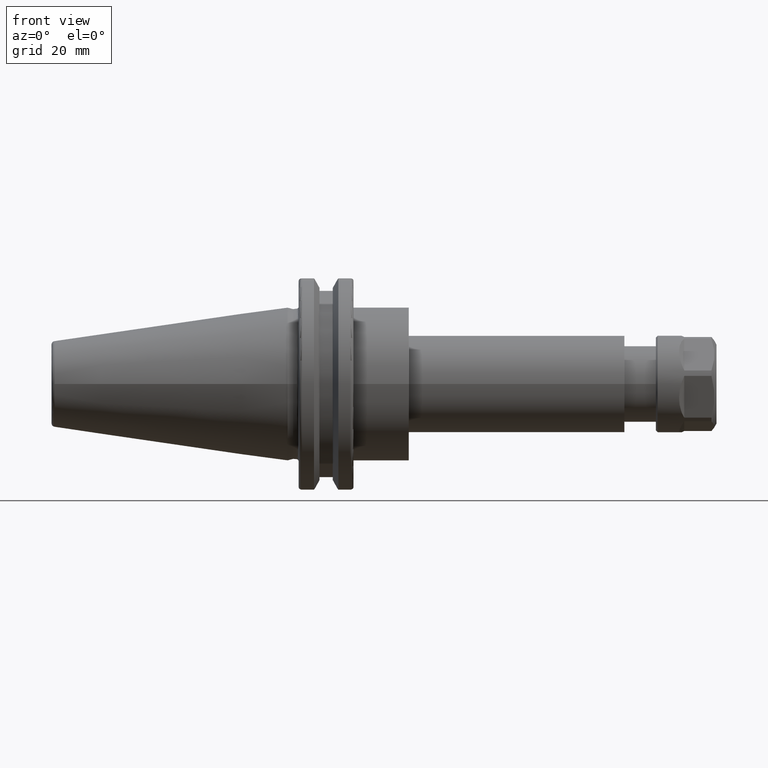
[diagram: clean part render]
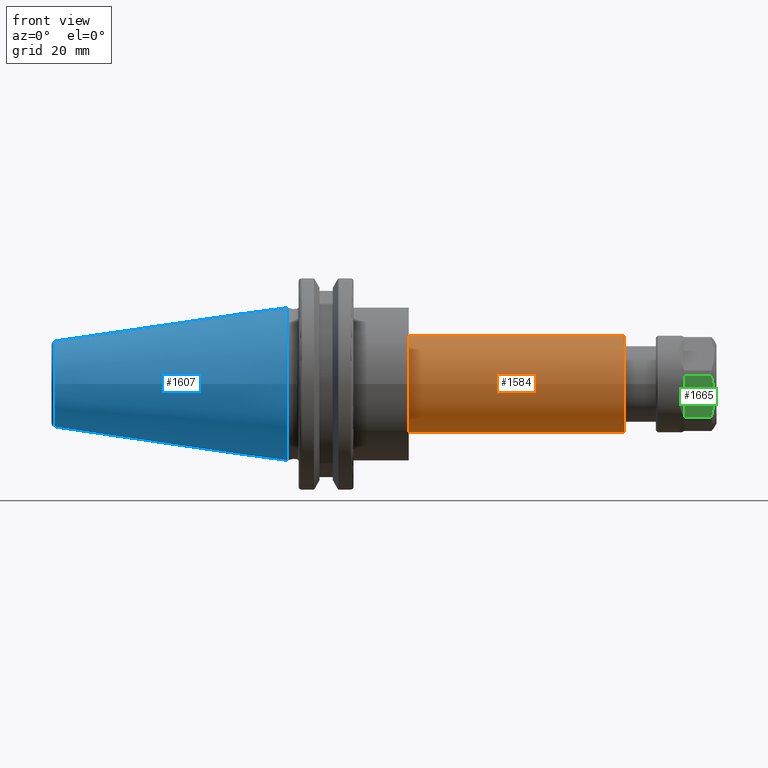
[diagram: same view with three faces highlighted in distinct colors, each labeled with its STEP entity id]
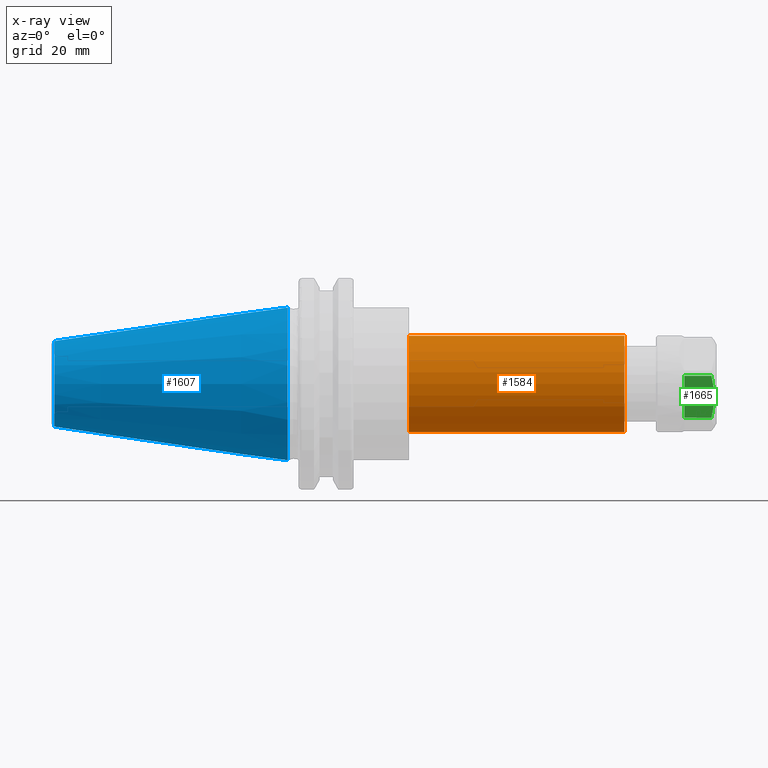
[diagram: x-ray of the same camera — body ghosted, the three highlighted faces saturated]
A machine part, front view with three faces highlighted in distinct colors.
The next image is the same camera in x-ray (body ghosted, the three faces saturated) — at least one of them is partly hidden behind the body in this view.
Their STEP definitions:

[orange] entity #1584 — the highlighted cylindrical surface (bore or boss wall) has radius 14 mm, axis along (1, 0, 0).
#204=FACE_OUTER_BOUND('',#301,.T.);
#301=EDGE_LOOP('',(#1113,#1114,#1115,#1116));
#407=LINE('',#2449,#516);
#516=VECTOR('',#1978,14.);
#629=CIRCLE('',#1763,14.);
#630=CIRCLE('',#1765,14.);
#708=VERTEX_POINT('',#2444);
#709=VERTEX_POINT('',#2447);
#867=EDGE_CURVE('',#708,#708,#629,.T.);
#868=EDGE_CURVE('',#709,#709,#630,.T.);
#869=EDGE_CURVE('',#709,#708,#407,.T.);
#1113=ORIENTED_EDGE('',*,*,#868,.F.);
#1114=ORIENTED_EDGE('',*,*,#869,.T.);
#1115=ORIENTED_EDGE('',*,*,#867,.T.);
#1116=ORIENTED_EDGE('',*,*,#869,.F.);
#1557=CYLINDRICAL_SURFACE('',#1764,14.);
#1584=ADVANCED_FACE('',(#204),#1557,.T.);
#1763=AXIS2_PLACEMENT_3D('',#2445,#1972,#1973);
#1764=AXIS2_PLACEMENT_3D('',#2446,#1974,#1975);
#1765=AXIS2_PLACEMENT_3D('',#2448,#1976,#1977);
#1972=DIRECTION('center_axis',(1.,0.,0.));
#1973=DIRECTION('ref_axis',(0.,0.,-1.));
#1974=DIRECTION('center_axis',(1.,0.,0.));
#1975=DIRECTION('ref_axis',(0.,1.,0.));
#1976=DIRECTION('center_axis',(1.,0.,0.));
#1977=DIRECTION('ref_axis',(0.,0.,-1.));
#1978=DIRECTION('',(-1.,0.,0.));
#2444=CARTESIAN_POINT('',(35.,-14.,-1.71450551880629E-15));
#2445=CARTESIAN_POINT('Origin',(35.,0.,0.));
#2446=CARTESIAN_POINT('Origin',(66.175,0.,0.));
#2447=CARTESIAN_POINT('',(97.35,-14.,-1.71450551880629E-15));
#2448=CARTESIAN_POINT('Origin',(97.35,0.,0.));
#2449=CARTESIAN_POINT('',(66.175,-14.,-1.71450551880629E-15));

[blue] entity #1607 — the highlighted conical surface has half-angle 8.297 deg.
#184=CONICAL_SURFACE('',#1810,17.2484375,0.144812498238939);
#227=FACE_OUTER_BOUND('',#329,.T.);
#329=EDGE_LOOP('',(#1252,#1253,#1254,#1255,#1256));
#453=LINE('',#2757,#562);
#562=VECTOR('',#2116,17.2484375);
#648=CIRCLE('',#1804,12.3966635780937);
#649=CIRCLE('',#1805,12.3966635780937);
#653=CIRCLE('',#1811,22.225);
#779=VERTEX_POINT('',#2744);
#780=VERTEX_POINT('',#2745);
#783=VERTEX_POINT('',#2755);
#958=EDGE_CURVE('',#779,#780,#648,.T.);
#959=EDGE_CURVE('',#780,#779,#649,.T.);
#963=EDGE_CURVE('',#783,#783,#653,.T.);
#964=EDGE_CURVE('',#783,#780,#453,.T.);
#1252=ORIENTED_EDGE('',*,*,#963,.F.);
#1253=ORIENTED_EDGE('',*,*,#964,.T.);
#1254=ORIENTED_EDGE('',*,*,#958,.F.);
#1255=ORIENTED_EDGE('',*,*,#959,.F.);
#1256=ORIENTED_EDGE('',*,*,#964,.F.);
#1607=ADVANCED_FACE('',(#227),#184,.T.);
#1804=AXIS2_PLACEMENT_3D('',#2746,#2100,#2101);
#1805=AXIS2_PLACEMENT_3D('',#2747,#2102,#2103);
#1810=AXIS2_PLACEMENT_3D('',#2754,#2112,#2113);
#1811=AXIS2_PLACEMENT_3D('',#2756,#2114,#2115);
#2100=DIRECTION('center_axis',(-1.,0.,0.));
#2101=DIRECTION('ref_axis',(0.,-1.,3.06161699786838E-17));
#2102=DIRECTION('center_axis',(-1.,0.,0.));
#2103=DIRECTION('ref_axis',(0.,-1.,3.06161699786838E-17));
#2112=DIRECTION('center_axis',(1.,0.,0.));
#2113=DIRECTION('ref_axis',(0.,1.,0.));
#2114=DIRECTION('center_axis',(1.,0.,0.));
#2115=DIRECTION('ref_axis',(0.,0.,-1.));
#2116=DIRECTION('',(-0.989532981063282,0.144306893071729,1.76724974695192E-17));
#2744=CARTESIAN_POINT('',(-67.3943068930717,-1.5181534371019E-15,12.3966635780937));
#2745=CARTESIAN_POINT('',(-67.3943068930718,-12.3966635780937,-1.5181534371019E-15));
#2746=CARTESIAN_POINT('Origin',(-67.3943068930717,0.,-1.89769179637738E-15));
#2747=CARTESIAN_POINT('Origin',(-67.3943068930717,0.,-1.89769179637738E-15));
#2754=CARTESIAN_POINT('Origin',(-34.125,0.,0.));
#2755=CARTESIAN_POINT('',(0.,-22.225,-2.72177751110499E-15));
#2756=CARTESIAN_POINT('Origin',(0.,0.,0.));
#2757=CARTESIAN_POINT('',(-34.125,-17.2484375,-2.11232437746682E-15));

[green] entity #1665 — the highlighted planar face has unit normal (0, 0.9557, 0.2942).
#92=(
BOUNDED_CURVE()
B_SPLINE_CURVE(2,(#2963,#2964,#2965),.UNSPECIFIED.,.F.,.F.)
B_SPLINE_CURVE_WITH_KNOTS((3,3),(1.76676018698417,3.88699167916846),
 .UNSPECIFIED.)
CURVE()
GEOMETRIC_REPRESENTATION_ITEM()
RATIONAL_B_SPLINE_CURVE((1.57887257803575,1.76833728739999,1.57887257803583))
REPRESENTATION_ITEM('')
);
#176=PLANE('',#1920);
#285=FACE_OUTER_BOUND('',#395,.T.);
#395=EDGE_LOOP('',(#1531,#1532,#1533,#1534));
#502=LINE('',#3013,#611);
#503=LINE('',#3016,#612);
#507=LINE('',#3026,#616);
#611=VECTOR('',#2369,7.856624327026);
#612=VECTOR('',#2372,7.856624327026);
#616=VECTOR('',#2388,12.6095202129196);
#832=VERTEX_POINT('',#2960);
#833=VERTEX_POINT('',#2962);
#849=VERTEX_POINT('',#3012);
#850=VERTEX_POINT('',#3014);
#1050=EDGE_CURVE('',#833,#832,#92,.T.);
#1075=EDGE_CURVE('',#849,#833,#502,.T.);
#1077=EDGE_CURVE('',#850,#832,#503,.T.);
#1081=EDGE_CURVE('',#849,#850,#507,.T.);
#1531=ORIENTED_EDGE('',*,*,#1081,.F.);
#1532=ORIENTED_EDGE('',*,*,#1075,.T.);
#1533=ORIENTED_EDGE('',*,*,#1050,.T.);
#1534=ORIENTED_EDGE('',*,*,#1077,.F.);
#1665=ADVANCED_FACE('',(#285),#176,.F.);
#1920=AXIS2_PLACEMENT_3D('',#3025,#2386,#2387);
#2369=DIRECTION('',(1.,0.,0.));
#2372=DIRECTION('',(1.,0.,0.));
#2386=DIRECTION('center_axis',(0.,-0.866025403784429,0.500000000000017));
#2387=DIRECTION('ref_axis',(0.,-0.500000000000017,-0.866025403784429));
#2388=DIRECTION('',(0.,-0.500000000000017,-0.866025403784429));
#2960=CARTESIAN_POINT('',(7.306624327026,7.672937494076,-11.71008241696));
#2962=CARTESIAN_POINT('',(7.306624327026,13.97769760054,-0.7899175830396));
#2963=CARTESIAN_POINT('Ctrl Pts',(7.30662432702171,13.9776976005394,-0.789917583040281));
#2964=CARTESIAN_POINT('Ctrl Pts',(8.94588669847094,10.8253175473094,-6.25000000000109));
#2965=CARTESIAN_POINT('Ctrl Pts',(7.30662432702252,7.67293749407968,-11.7100824169614));
#3012=CARTESIAN_POINT('',(-0.55,13.97769760054,-0.7899175830396));
#3013=CARTESIAN_POINT('',(-0.55,13.97769760054,-0.7899175830396));
#3014=CARTESIAN_POINT('',(-0.55,7.672937494076,-11.71008241696));
#3016=CARTESIAN_POINT('',(-0.55,7.672937494076,-11.71008241696));
#3025=CARTESIAN_POINT('Origin',(8.75,15.82531754731,2.410254037844));
#3026=CARTESIAN_POINT('',(-0.55,13.97769760054,-0.7899175830396));